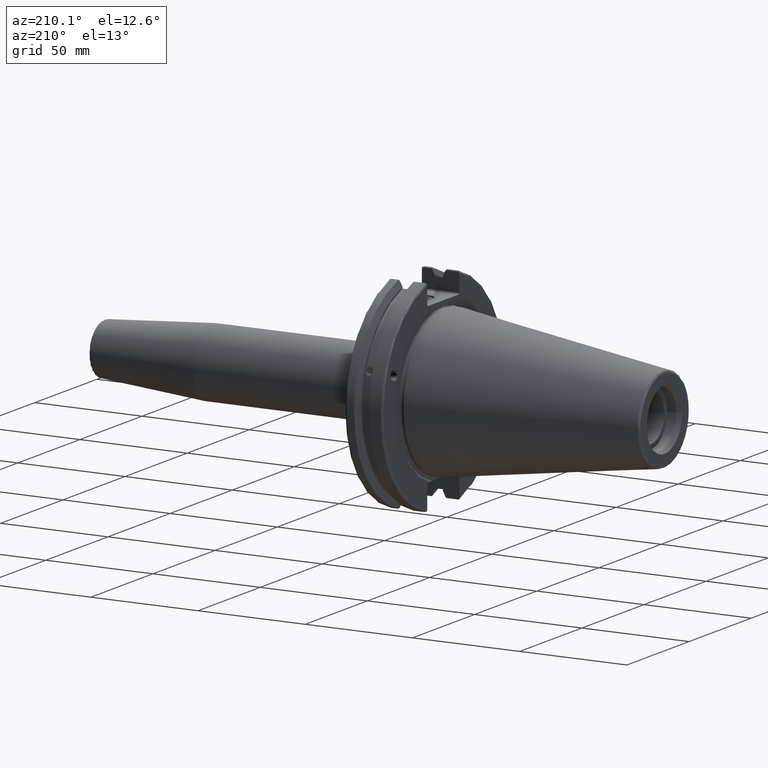
[diagram: clean part render]
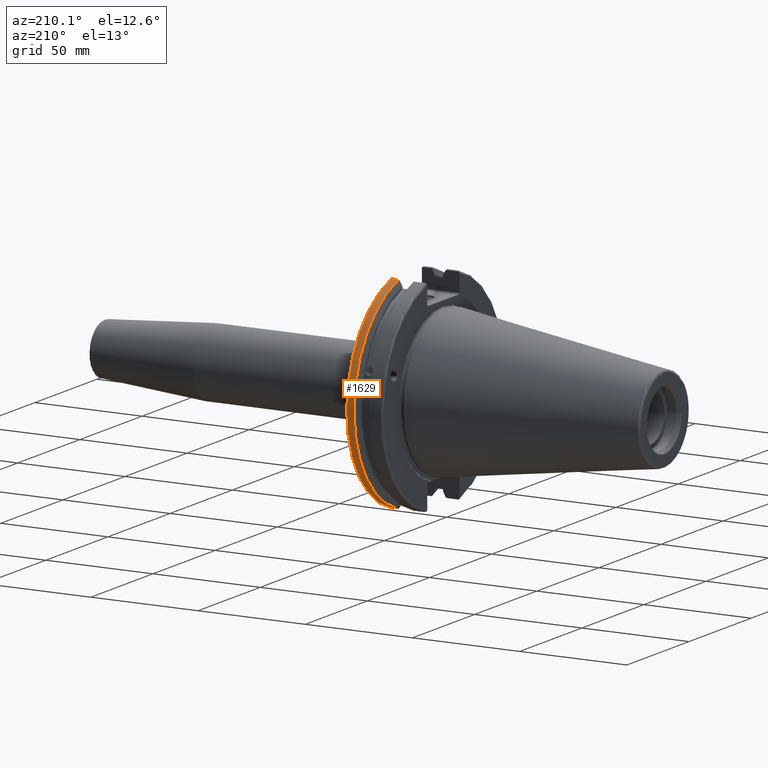
[diagram: same view with one face highlighted and labeled with its STEP entity id]
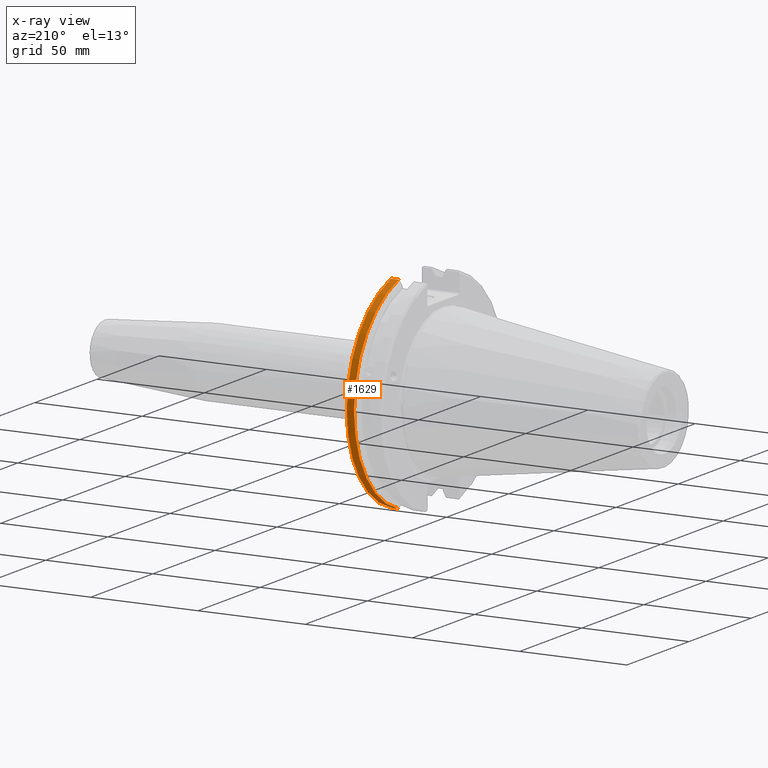
[diagram: x-ray of the same camera — body ghosted, the highlighted face saturated]
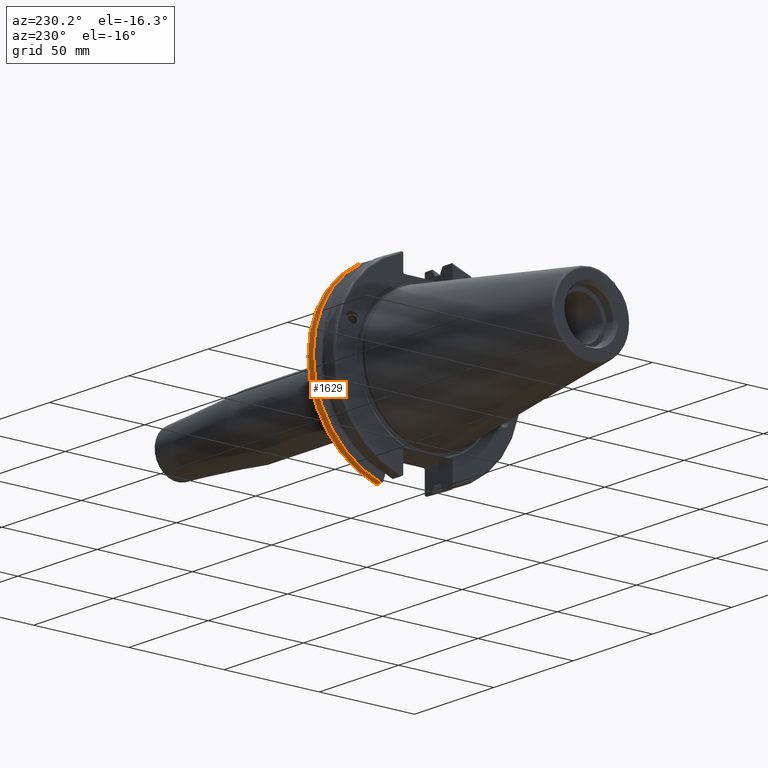
[diagram: same view with one face highlighted and labeled with its STEP entity id]
A machine part, auxiliary view. The second image highlights one B-rep face of the part: STEP entity #1629.
The next image is the same camera in x-ray: the body ghosted, the highlighted face saturated — about 0% of this face is hidden behind the body in this view.
A second angle (auxiliary view) of the same face is appended — the face is thin or edge-on in the first view.
In plain terms, the highlighted cylindrical surface (partial cylindrical patch) has radius 49.2125 mm, axis along (1, 0, 0).
Its self-contained STEP definition (entity closure, byte-faithful):
#166=CYLINDRICAL_SURFACE('',#1813,49.2125);
#243=FACE_OUTER_BOUND('',#352,.T.);
#352=EDGE_LOOP('',(#1447,#1448,#1449,#1450));
#427=LINE('',#2996,#525);
#467=LINE('',#3226,#565);
#525=VECTOR('',#2108,10.);
#565=VECTOR('',#2222,10.);
#624=CIRCLE('',#1774,49.2125);
#638=CIRCLE('',#1814,49.2125);
#759=VERTEX_POINT('',#2970);
#760=VERTEX_POINT('',#2979);
#762=VERTEX_POINT('',#2992);
#807=VERTEX_POINT('',#3225);
#956=EDGE_CURVE('',#759,#760,#624,.T.);
#960=EDGE_CURVE('',#762,#759,#427,.T.);
#1033=EDGE_CURVE('',#760,#807,#467,.T.);
#1035=EDGE_CURVE('',#762,#807,#638,.T.);
#1447=ORIENTED_EDGE('',*,*,#956,.F.);
#1448=ORIENTED_EDGE('',*,*,#960,.F.);
#1449=ORIENTED_EDGE('',*,*,#1035,.T.);
#1450=ORIENTED_EDGE('',*,*,#1033,.F.);
#1629=ADVANCED_FACE('',(#243),#166,.T.);
#1774=AXIS2_PLACEMENT_3D('',#2980,#2103,#2104);
#1813=AXIS2_PLACEMENT_3D('',#3230,#2223,#2224);
#1814=AXIS2_PLACEMENT_3D('',#3231,#2225,#2226);
#2103=DIRECTION('center_axis',(1.,0.,0.));
#2104=DIRECTION('ref_axis',(0.,1.,-6.12323399573677E-17));
#2108=DIRECTION('',(1.,0.,0.));
#2222=DIRECTION('',(-1.,0.,0.));
#2223=DIRECTION('center_axis',(1.,0.,0.));
#2224=DIRECTION('ref_axis',(0.,1.,0.));
#2225=DIRECTION('center_axis',(1.,0.,0.));
#2226=DIRECTION('ref_axis',(0.,0.,-1.));
#2970=CARTESIAN_POINT('',(18.05,13.4317035994433,-47.3440544806494));
#2979=CARTESIAN_POINT('',(18.05,13.4317035994433,47.3440544806494));
#2980=CARTESIAN_POINT('Origin',(18.05,0.,0.));
#2992=CARTESIAN_POINT('',(14.6531090340487,13.4317035994433,-47.3440544806494));
#2996=CARTESIAN_POINT('',(16.8515545170244,13.4317035994433,-47.3440544806494));
#3225=CARTESIAN_POINT('',(14.6531090340487,13.4317035994433,47.3440544806494));
#3226=CARTESIAN_POINT('',(16.8515545170244,13.4317035994433,47.3440544806494));
#3230=CARTESIAN_POINT('Origin',(16.8515545170244,0.,0.));
#3231=CARTESIAN_POINT('Origin',(14.6531090340487,0.,0.));